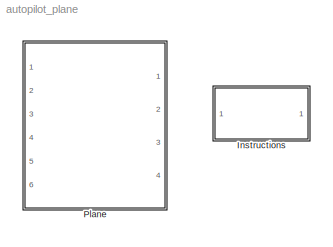
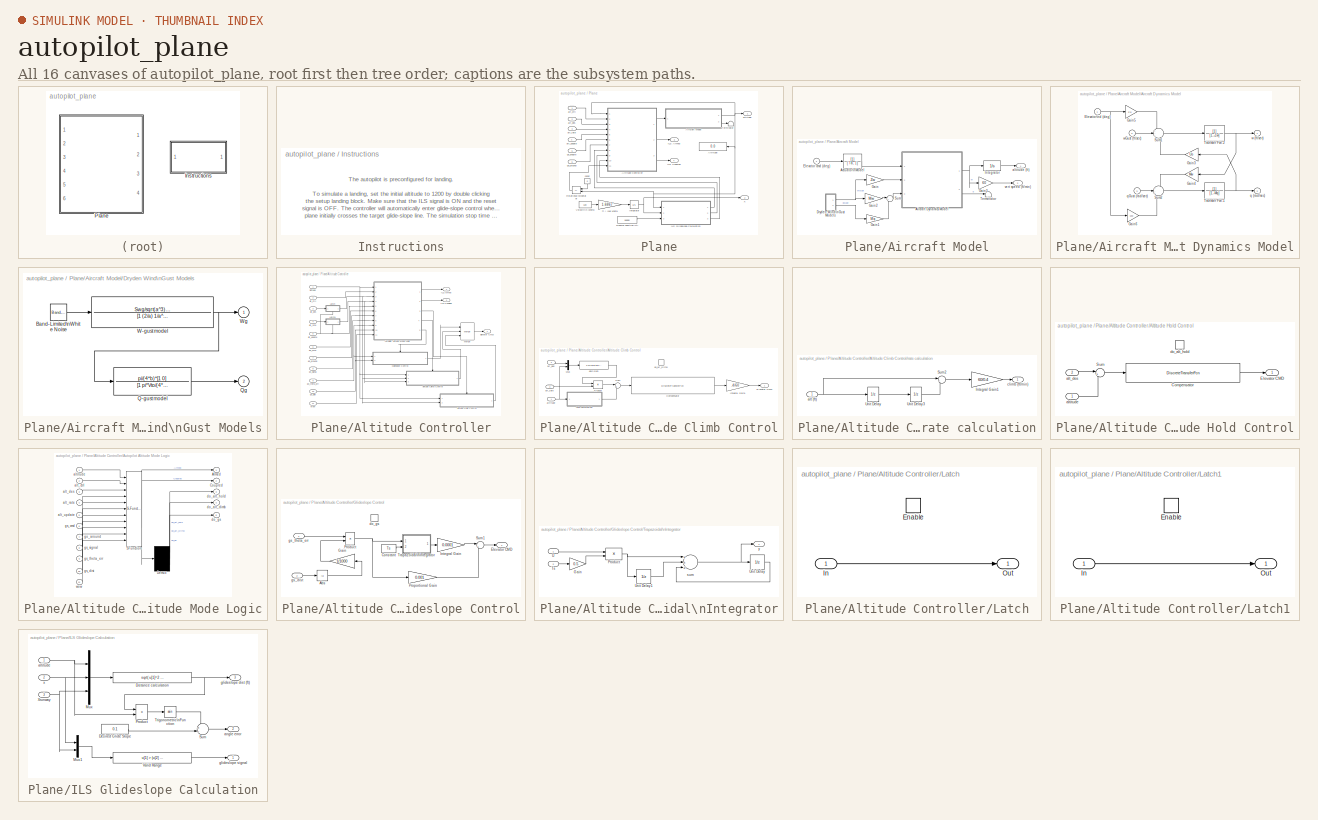
[diagram: thumbnail index - all 16 canvases of the model, root first then tree order]
MODEL autopilot_plane
KIND library
BLOCK [SubSystem] Instructions
  MaskDisplay = disp('Flight\\nInstructions\\n(double-click)')
  MaskIconFrame = on
  MaskIconOpaque = on
  MaskIconRotate = none
  MaskIconUnits = autoscale
  MinAlgLoopOccurrences = off
  Ports = []
  PropExecContextAcrossSSBoundary = on
  RTWSystemCode = Auto
  TreatAsAtomicUnit = off
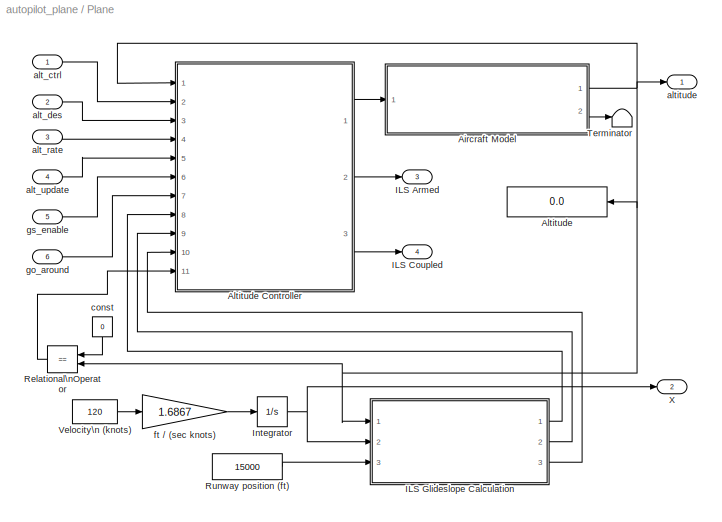
BLOCK [SubSystem] Plane
  MinAlgLoopOccurrences = off
  Ports = [6, 4]
  PropExecContextAcrossSSBoundary = on
  RTWSystemCode = Auto
  TreatAsAtomicUnit = off
BLOCK [SubSystem] Plane/Aircraft Model
  MinAlgLoopOccurrences = off
  Ports = [1, 2]
  PropExecContextAcrossSSBoundary = on
  RTWSystemCode = Auto
  TreatAsAtomicUnit = off
BLOCK [TransferFcn] Plane/Aircraft Model/Actuator\nModel
  Denominator = [ Ta, 1]
BLOCK [SubSystem] Plane/Aircraft Model/Aircraft Dynamics Model
  MinAlgLoopOccurrences = off
  Ports = [3, 2]
  PropExecContextAcrossSSBoundary = on
  RTWSystemCode = Auto
  TreatAsAtomicUnit = off
BLOCK [Inport] Plane/Aircraft Model/Aircraft Dynamics Model/Elevator\nd (deg)
  IconDisplay = Port number
  LatchInput = off
  Port = 1
BLOCK [Gain] Plane/Aircraft Model/Aircraft Dynamics Model/Gain3
  Gain = Uo
BLOCK [Gain] Plane/Aircraft Model/Aircraft Dynamics Model/Gain4
  Gain = Mw
BLOCK [Gain] Plane/Aircraft Model/Aircraft Dynamics Model/Gain5
  Gain = Zd
BLOCK [Gain] Plane/Aircraft Model/Aircraft Dynamics Model/Gain6
  Gain = Md
BLOCK [Sum] Plane/Aircraft Model/Aircraft Dynamics Model/Sum1
  IconShape = round
  Inputs = +-+
  Ports = [3, 1]
BLOCK [Sum] Plane/Aircraft Model/Aircraft Dynamics Model/Sum2
  IconShape = round
  Inputs = +-+
  Ports = [3, 1]
BLOCK [TransferFcn] Plane/Aircraft Model/Aircraft Dynamics Model/Transfer Fcn.1
  Denominator = [1,-Mq]
BLOCK [TransferFcn] Plane/Aircraft Model/Aircraft Dynamics Model/Transfer Fcn.2
  Denominator = [1,-Zw]
BLOCK [Outport] Plane/Aircraft Model/Aircraft Dynamics Model/q (rad//sec)
  IconDisplay = Port number
  InitialOutput = 0
  Port = 2
BLOCK [Inport] Plane/Aircraft Model/Aircraft Dynamics Model/qGust (rad//sec)
  IconDisplay = Port number
  LatchInput = off
  Port = 3
BLOCK [Outport] Plane/Aircraft Model/Aircraft Dynamics Model/w (ft//sec)
  IconDisplay = Port number
  InitialOutput = 0
BLOCK [Inport] Plane/Aircraft Model/Aircraft Dynamics Model/wGust (ft//sec)
  IconDisplay = Port number
  LatchInput = off
  Port = 2
BLOCK [SubSystem] Plane/Aircraft Model/Dryden Wind\nGust Models
  MinAlgLoopOccurrences = off
  Ports = [0, 2]
  PropExecContextAcrossSSBoundary = on
  RTWSystemCode = Auto
  TreatAsAtomicUnit = off
BLOCK [Reference] Plane/Aircraft Model/Dryden Wind\nGust Models/Band-Limited\nWhite Noise  REF=simulink/Sources/Band-Limited\nWhite Noise
  Cov = 1
  Ports = [0, 1]
  SourceBlock = simulink/Sources/Band-Limited\nWhite Noise
  SourceType = Continuous White Noise.
  Ts = 0.2
  VectorParams1D = on
  seed = [23341]
BLOCK [TransferFcn] Plane/Aircraft Model/Dryden Wind\nGust Models/Q-gust model
  Denominator = [1 pi*Vto/(4*b)]
  Numerator = pi/(4*b)*[1 0]
BLOCK [Outport] Plane/Aircraft Model/Dryden Wind\nGust Models/Qg
  IconDisplay = Port number
  InitialOutput = 0
  Port = 2
BLOCK [TransferFcn] Plane/Aircraft Model/Dryden Wind\nGust Models/W-gust model
  Denominator = [1 (2/a) 1/a^2]
  Numerator = Swg/sqrt(a^3)*[sqrt(3)*a,1]
BLOCK [Outport] Plane/Aircraft Model/Dryden Wind\nGust Models/Wg
  IconDisplay = Port number
  InitialOutput = 0
BLOCK [Inport] Plane/Aircraft Model/Elevator cmd (deg)
  IconDisplay = Port number
  LatchInput = off
  Port = 1
BLOCK [Gain] Plane/Aircraft Model/Gain
  Gain = Zw
BLOCK [Gain] Plane/Aircraft Model/Gain1
  Gain = Mq
BLOCK [Gain] Plane/Aircraft Model/Gain2
  Gain = Mw
BLOCK [Gain] Plane/Aircraft Model/Gain3
  Gain = 60
BLOCK [Integrator] Plane/Aircraft Model/Integrator
  InitialCondition = alt_ic
  LimitOutput = on
  LowerSaturationLimit = 0
  Ports = [1, 1]
BLOCK [Sum] Plane/Aircraft Model/Sum
  IconShape = round
  Inputs = |++
  Ports = [2, 1]
BLOCK [Terminator] Plane/Aircraft Model/Terminator
BLOCK [Outport] Plane/Aircraft Model/altitude (ft)
  IconDisplay = Port number
BLOCK [Outport] Plane/Aircraft Model/vert speed (ft//min)
  IconDisplay = Port number
  Port = 2
BLOCK [Display] Plane/Altitude
  Decimation = 1
  Ports = [1]
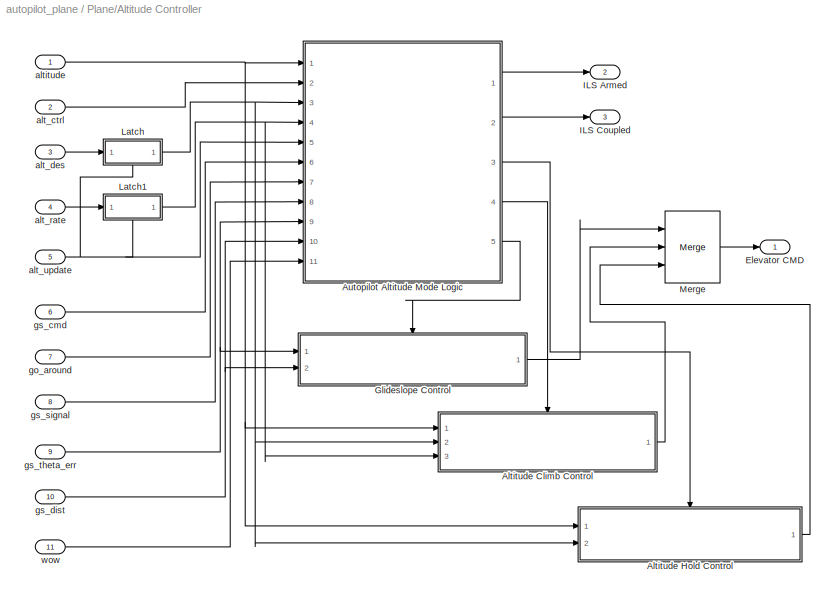
BLOCK [SubSystem] Plane/Altitude Controller
  MinAlgLoopOccurrences = off
  Ports = [11, 3]
  PropExecContextAcrossSSBoundary = on
  RTWSystemCode = Auto
  TreatAsAtomicUnit = off
BLOCK [SubSystem] Plane/Altitude Controller/Altitude Climb Control
  MinAlgLoopOccurrences = off
  Ports = [3, 1, 0, 1]
  PropExecContextAcrossSSBoundary = on
  RTWSystemCode = Auto
  TreatAsAtomicUnit = on
BLOCK [DiscreteTransferFcn] Plane/Altitude Controller/Altitude Climb Control/Compensator
  Denominator = [1 -0.4855  -0.4181 -0.08965  -0.006702]
  Numerator = [-0.003849   0.007402  -0.003561 -2.681e-006]
  SampleTime = -1
BLOCK [Outport] Plane/Altitude Controller/Altitude Climb Control/Elevator CMD
  IconDisplay = Port number
BLOCK [Gain] Plane/Altitude Controller/Altitude Climb Control/Integral Gain1
  Gain = .4/60
BLOCK [Mux] Plane/Altitude Controller/Altitude Climb Control/Mux
  DisplayOption = bar
  Inputs = 2
  Ports = [2, 1]
BLOCK [Product] Plane/Altitude Controller/Altitude Climb Control/Product
  Ports = [2, 1]
  RndMeth = Floor
BLOCK [Sum] Plane/Altitude Controller/Altitude Climb Control/Sum
  IconShape = round
  Inputs = |+-
  Ports = [2, 1]
BLOCK [Inport] Plane/Altitude Controller/Altitude Climb Control/alt_des
  IconDisplay = Port number
  LatchInput = off
  Port = 2
BLOCK [Inport] Plane/Altitude Controller/Altitude Climb Control/alt_rate
  IconDisplay = Port number
  LatchInput = off
  Port = 3
BLOCK [Inport] Plane/Altitude Controller/Altitude Climb Control/altitude
  IconDisplay = Port number
  LatchInput = off
  Port = 1
BLOCK [TriggerPort] Plane/Altitude Controller/Altitude Climb Control/do_alt_climb
  Ports = []
  TriggerType = function-call
BLOCK [Fcn] Plane/Altitude Controller/Altitude Climb Control/gain sign
  Expr = 1-2*(u[2]>u[1])
BLOCK [SubSystem] Plane/Altitude Controller/Altitude Climb Control/rate calculation
  MinAlgLoopOccurrences = off
  Ports = [1, 1]
  PropExecContextAcrossSSBoundary = on
  RTWSystemCode = Auto
  TreatAsAtomicUnit = off
BLOCK [Gain] Plane/Altitude Controller/Altitude Climb Control/rate calculation/Integral Gain1
  Gain = 60/0.4
BLOCK [Sum] Plane/Altitude Controller/Altitude Climb Control/rate calculation/Sum2
  IconShape = round
  Inputs = |+-
  Ports = [2, 1]
BLOCK [UnitDelay] Plane/Altitude Controller/Altitude Climb Control/rate calculation/Unit Delay
  SampleTime = -1
  X0 = 10000
BLOCK [UnitDelay] Plane/Altitude Controller/Altitude Climb Control/rate calculation/Unit Delay3
  SampleTime = -1
  X0 = 10000
BLOCK [Inport] Plane/Altitude Controller/Altitude Climb Control/rate calculation/alt (ft)
  IconDisplay = Port number
  LatchInput = off
  Port = 1
BLOCK [Outport] Plane/Altitude Controller/Altitude Climb Control/rate calculation/climb (ft//min)
  IconDisplay = Port number
BLOCK [SubSystem] Plane/Altitude Controller/Altitude Hold Control
  MinAlgLoopOccurrences = off
  Ports = [2, 1, 0, 1]
  PropExecContextAcrossSSBoundary = on
  RTWSystemCode = Auto
  TreatAsAtomicUnit = on
BLOCK [DiscreteTransferFcn] Plane/Altitude Controller/Altitude Hold Control/Compensator
  Denominator = [1 1.713  0.7383]
  Numerator = [-0.007845  0.01559 -0.007756]
  SampleTime = -1
BLOCK [Outport] Plane/Altitude Controller/Altitude Hold Control/Elevator CMD
  IconDisplay = Port number
BLOCK [Sum] Plane/Altitude Controller/Altitude Hold Control/Sum
  IconShape = round
  Inputs = |+-
  Ports = [2, 1]
BLOCK [Inport] Plane/Altitude Controller/Altitude Hold Control/alt_des
  IconDisplay = Port number
  LatchInput = off
  Port = 2
BLOCK [Inport] Plane/Altitude Controller/Altitude Hold Control/altitude
  IconDisplay = Port number
  LatchInput = off
  Port = 1
BLOCK [TriggerPort] Plane/Altitude Controller/Altitude Hold Control/do_alt_hold
  Ports = []
  TriggerType = function-call
BLOCK [SubSystem] Plane/Altitude Controller/Autopilot Altitude Mode Logic
  MaskDisplay = plot(sf('Private','sfblk','xIcon'),sf('Private','sfblk','yIcon'));text(0.5,0,sf('Private', 'sfblk', 'tIcon'),'HorizontalAl','Center','VerticalAl','Bottom');
  MaskIconFrame = off
  MaskIconOpaque = off
  MaskIconRotate = none
  MaskIconUnits = autoscale
  MaskSelfModifiable = on
  MaskType = Stateflow
  MinAlgLoopOccurrences = off
  Ports = [11, 5]
  PropExecContextAcrossSSBoundary = on
  RTWSystemCode = Auto
  TreatAsAtomicUnit = off
BLOCK [Demux] Plane/Altitude Controller/Autopilot Altitude Mode Logic/ Demux 
  Outputs = 3
  Ports = [1, 3]
BLOCK [S-Function] Plane/Altitude Controller/Autopilot Altitude Mode Logic/ SFunction 
  FunctionName = sf_sfun
  Parameters = Ts
  PortCounts = [11 3]
  Ports = [11, 3]
  Tag = Stateflow S-Function autopilot_plane 1
BLOCK [Outport] Plane/Altitude Controller/Autopilot Altitude Mode Logic/Armed
  IconDisplay = Port number
BLOCK [Outport] Plane/Altitude Controller/Autopilot Altitude Mode Logic/Coupled
  IconDisplay = Port number
  Port = 2
BLOCK [Inport] Plane/Altitude Controller/Autopilot Altitude Mode Logic/alt_ctrl
  IconDisplay = Port number
  LatchInput = off
  Port = 2
BLOCK [Inport] Plane/Altitude Controller/Autopilot Altitude Mode Logic/alt_des
  IconDisplay = Port number
  LatchInput = off
  Port = 3
BLOCK [Inport] Plane/Altitude Controller/Autopilot Altitude Mode Logic/alt_rate
  IconDisplay = Port number
  LatchInput = off
  Port = 4
BLOCK [Inport] Plane/Altitude Controller/Autopilot Altitude Mode Logic/alt_update
  IconDisplay = Port number
  LatchInput = off
  Port = 5
BLOCK [Inport] Plane/Altitude Controller/Autopilot Altitude Mode Logic/altitude
  IconDisplay = Port number
  LatchInput = off
  Port = 1
BLOCK [Outport] Plane/Altitude Controller/Autopilot Altitude Mode Logic/do_alt_climb
  IconDisplay = Port number
  Port = 4
BLOCK [Outport] Plane/Altitude Controller/Autopilot Altitude Mode Logic/do_alt_hold
  IconDisplay = Port number
  Port = 3
BLOCK [Outport] Plane/Altitude Controller/Autopilot Altitude Mode Logic/do_gs
  IconDisplay = Port number
  Port = 5
BLOCK [Inport] Plane/Altitude Controller/Autopilot Altitude Mode Logic/go_around
  IconDisplay = Port number
  LatchInput = off
  Port = 7
BLOCK [Inport] Plane/Altitude Controller/Autopilot Altitude Mode Logic/gs_cmd
  IconDisplay = Port number
  LatchInput = off
  Port = 6
BLOCK [Inport] Plane/Altitude Controller/Autopilot Altitude Mode Logic/gs_dist
  IconDisplay = Port number
  LatchInput = off
  Port = 10
BLOCK [Inport] Plane/Altitude Controller/Autopilot Altitude Mode Logic/gs_signal
  IconDisplay = Port number
  LatchInput = off
  Port = 8
BLOCK [Inport] Plane/Altitude Controller/Autopilot Altitude Mode Logic/gs_theta_err
  IconDisplay = Port number
  LatchInput = off
  Port = 9
BLOCK [Inport] Plane/Altitude Controller/Autopilot Altitude Mode Logic/wow
  IconDisplay = Port number
  LatchInput = off
  Port = 11
BLOCK [Outport] Plane/Altitude Controller/Elevator CMD
  IconDisplay = Port number
BLOCK [SubSystem] Plane/Altitude Controller/Glideslope Control
  MinAlgLoopOccurrences = off
  Ports = [2, 1, 0, 1]
  PropExecContextAcrossSSBoundary = on
  RTWSystemCode = Auto
  TreatAsAtomicUnit = on
BLOCK [Abs] Plane/Altitude Controller/Glideslope Control/Abs
BLOCK [Constant] Plane/Altitude Controller/Glideslope Control/Constant
  Value = Ts
BLOCK [Outport] Plane/Altitude Controller/Glideslope Control/Elevator CMD
  IconDisplay = Port number
BLOCK [Gain] Plane/Altitude Controller/Glideslope Control/Gain
  Gain = 1/1000
BLOCK [Gain] Plane/Altitude Controller/Glideslope Control/Integral Gain
  Gain = 0.0001
BLOCK [Product] Plane/Altitude Controller/Glideslope Control/Product
  Ports = [2, 1]
  RndMeth = Floor
BLOCK [Gain] Plane/Altitude Controller/Glideslope Control/Proportional Gain
  Gain = 0.001
BLOCK [Sum] Plane/Altitude Controller/Glideslope Control/Sum1
  IconShape = round
  Inputs = |++
  Ports = [2, 1]
BLOCK [SubSystem] Plane/Altitude Controller/Glideslope Control/Trapazoidal\nIntegrator
  MaskDescription = Discrete-time integrator with no dependence on absolute time.  U is the input value and Ts is the discrete sample time.
  MaskDisplay = disp(sprintf('T(z+1)\\n-----\\n2(z-1)'))\nport_label('input',1,'U');\nport_label('input',2,'Ts');
  MaskIconFrame = on
  MaskIconOpaque = on
  MaskIconRotate = none
  MaskIconUnits = autoscale
  MaskType = No Time Trapazoid Integrator
  MinAlgLoopOccurrences = off
  Ports = [2, 1]
  PropExecContextAcrossSSBoundary = on
  RTWSystemCode = Auto
  TreatAsAtomicUnit = off
BLOCK [Gain] Plane/Altitude Controller/Glideslope Control/Trapazoidal\nIntegrator/Gain
  Gain = 0.5
  SaturateOnIntegerOverflow = off
BLOCK [Product] Plane/Altitude Controller/Glideslope Control/Trapazoidal\nIntegrator/Product
  Ports = [2, 1]
  RndMeth = Floor
  SaturateOnIntegerOverflow = off
BLOCK [Inport] Plane/Altitude Controller/Glideslope Control/Trapazoidal\nIntegrator/Ts
  IconDisplay = Port number
  LatchInput = off
  Port = 2
BLOCK [Inport] Plane/Altitude Controller/Glideslope Control/Trapazoidal\nIntegrator/U
  IconDisplay = Port number
  LatchInput = off
  Port = 1
BLOCK [UnitDelay] Plane/Altitude Controller/Glideslope Control/Trapazoidal\nIntegrator/Unit Delay
  SampleTime = -1
BLOCK [UnitDelay] Plane/Altitude Controller/Glideslope Control/Trapazoidal\nIntegrator/Unit Delay1
  SampleTime = -1
BLOCK [Sum] Plane/Altitude Controller/Glideslope Control/Trapazoidal\nIntegrator/sum
  Inputs = +++
  Ports = [3, 1]
  SaturateOnIntegerOverflow = off
BLOCK [Outport] Plane/Altitude Controller/Glideslope Control/Trapazoidal\nIntegrator/y
  IconDisplay = Port number
BLOCK [TriggerPort] Plane/Altitude Controller/Glideslope Control/do_gs
  Ports = []
  TriggerType = function-call
BLOCK [Inport] Plane/Altitude Controller/Glideslope Control/gs_dist
  IconDisplay = Port number
  LatchInput = off
  Port = 2
BLOCK [Inport] Plane/Altitude Controller/Glideslope Control/gs_theta_err
  IconDisplay = Port number
  LatchInput = off
  Port = 1
BLOCK [Outport] Plane/Altitude Controller/ILS Armed
  IconDisplay = Port number
  Port = 2
BLOCK [Outport] Plane/Altitude Controller/ILS Coupled
  IconDisplay = Port number
  Port = 3
BLOCK [SubSystem] Plane/Altitude Controller/Latch
  MinAlgLoopOccurrences = off
  Ports = [1, 1, 1]
  PropExecContextAcrossSSBoundary = on
  RTWSystemCode = Inline
  TreatAsAtomicUnit = on
BLOCK [EnablePort] Plane/Altitude Controller/Latch/Enable
  Ports = []
BLOCK [Inport] Plane/Altitude Controller/Latch/In
  IconDisplay = Port number
  LatchInput = off
  Port = 1
BLOCK [Outport] Plane/Altitude Controller/Latch/Out
  IconDisplay = Port number
  InitialOutput = alt_ic
BLOCK [SubSystem] Plane/Altitude Controller/Latch1
  MinAlgLoopOccurrences = off
  Ports = [1, 1, 1]
  PropExecContextAcrossSSBoundary = on
  RTWSystemCode = Inline
  TreatAsAtomicUnit = on
BLOCK [EnablePort] Plane/Altitude Controller/Latch1/Enable
  Ports = []
BLOCK [Inport] Plane/Altitude Controller/Latch1/In
  IconDisplay = Port number
  LatchInput = off
  Port = 1
BLOCK [Outport] Plane/Altitude Controller/Latch1/Out
  IconDisplay = Port number
  InitialOutput = 10000
BLOCK [Merge] Plane/Altitude Controller/Merge
  Inputs = 3
  Ports = [3, 1]
BLOCK [Inport] Plane/Altitude Controller/alt_ctrl
  IconDisplay = Port number
  LatchInput = off
  Port = 2
  SampleTime = Ts
BLOCK [Inport] Plane/Altitude Controller/alt_des
  IconDisplay = Port number
  LatchInput = off
  Port = 3
  SampleTime = Ts
BLOCK [Inport] Plane/Altitude Controller/alt_rate
  IconDisplay = Port number
  LatchInput = off
  Port = 4
  SampleTime = Ts
BLOCK [Inport] Plane/Altitude Controller/alt_update
  IconDisplay = Port number
  LatchInput = off
  Port = 5
  SampleTime = Ts
BLOCK [Inport] Plane/Altitude Controller/altitude
  IconDisplay = Port number
  LatchInput = off
  Port = 1
  SampleTime = Ts
BLOCK [Inport] Plane/Altitude Controller/go_around
  IconDisplay = Port number
  LatchInput = off
  Port = 7
  SampleTime = Ts
BLOCK [Inport] Plane/Altitude Controller/gs_cmd
  IconDisplay = Port number
  LatchInput = off
  Port = 6
  SampleTime = Ts
BLOCK [Inport] Plane/Altitude Controller/gs_dist
  IconDisplay = Port number
  LatchInput = off
  Port = 10
  SampleTime = Ts
BLOCK [Inport] Plane/Altitude Controller/gs_signal
  IconDisplay = Port number
  LatchInput = off
  Port = 8
  SampleTime = Ts
BLOCK [Inport] Plane/Altitude Controller/gs_theta_err
  IconDisplay = Port number
  LatchInput = off
  Port = 9
  SampleTime = Ts
BLOCK [Inport] Plane/Altitude Controller/wow
  IconDisplay = Port number
  LatchInput = off
  Port = 11
  SampleTime = Ts
BLOCK [Outport] Plane/ILS Armed
  IconDisplay = Port number
  Port = 3
BLOCK [Outport] Plane/ILS Coupled
  IconDisplay = Port number
  Port = 4
BLOCK [SubSystem] Plane/ILS Glideslope Calculation
  MinAlgLoopOccurrences = off
  Ports = [3, 3]
  PropExecContextAcrossSSBoundary = on
  RTWSystemCode = Auto
  TreatAsAtomicUnit = off
BLOCK [Constant] Plane/ILS Glideslope Calculation/Desired Glide Slope
  Value = 0.1
BLOCK [Fcn] Plane/ILS Glideslope Calculation/Distance calculation
  Expr = sqrt( u[1]^2 + (u[2] - u[3])^2 )
BLOCK [Mux] Plane/ILS Glideslope Calculation/Mux
  DisplayOption = bar
  Inputs = 3
  Ports = [3, 1]
BLOCK [Mux] Plane/ILS Glideslope Calculation/Mux1
  DisplayOption = bar
  Inputs = 2
  Ports = [2, 1]
BLOCK [Product] Plane/ILS Glideslope Calculation/Product
  Inputs = /*
  Ports = [2, 1]
  RndMeth = Floor
BLOCK [Sum] Plane/ILS Glideslope Calculation/Sum
  IconShape = round
  Inputs = +-|
  Ports = [2, 1]
BLOCK [Trigonometry] Plane/ILS Glideslope Calculation/Trigonometric\nFunction
  Operator = asin
  Ports = [1, 1]
BLOCK [Fcn] Plane/ILS Glideslope Calculation/Valid Range
  Expr = u[1] > (u[2] - 10000)
BLOCK [Inport] Plane/ILS Glideslope Calculation/Xrunway
  IconDisplay = Port number
  LatchInput = off
  Port = 3
BLOCK [Inport] Plane/ILS Glideslope Calculation/altitude
  IconDisplay = Port number
  LatchInput = off
  Port = 1
BLOCK [Outport] Plane/ILS Glideslope Calculation/angle error
  IconDisplay = Port number
  Port = 2
BLOCK [Outport] Plane/ILS Glideslope Calculation/glideslope dist (ft)
  IconDisplay = Port number
  Port = 3
BLOCK [Outport] Plane/ILS Glideslope Calculation/glideslope signal
  IconDisplay = Port number
BLOCK [Inport] Plane/ILS Glideslope Calculation/x
  IconDisplay = Port number
  LatchInput = off
  Port = 2
BLOCK [Integrator] Plane/Integrator
  Ports = [1, 1]
BLOCK [RelationalOperator] Plane/Relational\nOperator
  Operator = ==
BLOCK [Constant] Plane/Runway position (ft)
  Value = 15000
BLOCK [Terminator] Plane/Terminator
BLOCK [Constant] Plane/Velocity\n (knots)
  Value = 120
BLOCK [Outport] Plane/X
  IconDisplay = Port number
  Port = 2
BLOCK [Inport] Plane/alt_ctrl
  IconDisplay = Port number
  LatchInput = off
  Port = 1
BLOCK [Inport] Plane/alt_des
  IconDisplay = Port number
  LatchInput = off
  Port = 2
BLOCK [Inport] Plane/alt_rate
  IconDisplay = Port number
  LatchInput = off
  Port = 3
BLOCK [Inport] Plane/alt_update
  IconDisplay = Port number
  LatchInput = off
  Port = 4
BLOCK [Outport] Plane/altitude
  IconDisplay = Port number
BLOCK [Constant] Plane/const
  Value = 0
BLOCK [Gain] Plane/ft // (sec knots)
  Gain = 1.6867
BLOCK [Inport] Plane/go_around
  IconDisplay = Port number
  LatchInput = off
  Port = 6
BLOCK [Inport] Plane/gs_enable
  IconDisplay = Port number
  LatchInput = off
  Port = 5
ANNOTATION Instructions: The autopilot is preconfigured for landing.\n\nTo simulate a landing, set the initial altitude to 1200 by double clicking\nthe setup landing block. Make sure that the ILS signal is ON and the reset\nsignal is OFF. The controller will automatically enter glide-slope control when the\nplane initially crosses the target glide-slope line. The simulation stop time is set\nto 150 seconds. \n\nTo simulat...<+366ch>
LINE Plane/Aircraft Model/Actuator\nModel:1 -> Plane/Aircraft Model/Aircraft Dynamics Model:1
NET Plane/Aircraft Model/Aircraft Dynamics Model/Elevator\nd (deg):1 -> Plane/Aircraft Model/Aircraft Dynamics Model/Gain5:1, Plane/Aircraft Model/Aircraft Dynamics Model/Gain6:1
LINE Plane/Aircraft Model/Aircraft Dynamics Model/Gain3:1 -> Plane/Aircraft Model/Aircraft Dynamics Model/Sum1:3
LINE Plane/Aircraft Model/Aircraft Dynamics Model/Gain4:1 -> Plane/Aircraft Model/Aircraft Dynamics Model/Sum2:1
LINE Plane/Aircraft Model/Aircraft Dynamics Model/Gain5:1 -> Plane/Aircraft Model/Aircraft Dynamics Model/Sum1:1
LINE Plane/Aircraft Model/Aircraft Dynamics Model/Gain6:1 -> Plane/Aircraft Model/Aircraft Dynamics Model/Sum2:3
LINE Plane/Aircraft Model/Aircraft Dynamics Model/Sum1:1 -> Plane/Aircraft Model/Aircraft Dynamics Model/Transfer Fcn.2:1
LINE Plane/Aircraft Model/Aircraft Dynamics Model/Sum2:1 -> Plane/Aircraft Model/Aircraft Dynamics Model/Transfer Fcn.1:1
NET Plane/Aircraft Model/Aircraft Dynamics Model/Transfer Fcn.1:1 -> Plane/Aircraft Model/Aircraft Dynamics Model/Gain3:1, Plane/Aircraft Model/Aircraft Dynamics Model/q (rad//sec):1
NET Plane/Aircraft Model/Aircraft Dynamics Model/Transfer Fcn.2:1 -> Plane/Aircraft Model/Aircraft Dynamics Model/Gain4:1, Plane/Aircraft Model/Aircraft Dynamics Model/w (ft//sec):1
LINE Plane/Aircraft Model/Aircraft Dynamics Model/qGust (rad//sec):1 -> Plane/Aircraft Model/Aircraft Dynamics Model/Sum2:2
LINE Plane/Aircraft Model/Aircraft Dynamics Model/wGust (ft//sec):1 -> Plane/Aircraft Model/Aircraft Dynamics Model/Sum1:2
NET Plane/Aircraft Model/Aircraft Dynamics Model:1 -> Plane/Aircraft Model/Gain3:1, Plane/Aircraft Model/Integrator:1
LINE Plane/Aircraft Model/Aircraft Dynamics Model:2 -> Plane/Aircraft Model/Terminator:1
LINE Plane/Aircraft Model/Dryden Wind\nGust Models/Band-Limited\nWhite Noise:1 -> Plane/Aircraft Model/Dryden Wind\nGust Models/W-gust model:1
LINE Plane/Aircraft Model/Dryden Wind\nGust Models/Q-gust model:1 -> Plane/Aircraft Model/Dryden Wind\nGust Models/Qg:1
NET Plane/Aircraft Model/Dryden Wind\nGust Models/W-gust model:1 -> Plane/Aircraft Model/Dryden Wind\nGust Models/Q-gust model:1, Plane/Aircraft Model/Dryden Wind\nGust Models/Wg:1
NET Plane/Aircraft Model/Dryden Wind\nGust Models:1 -> Plane/Aircraft Model/Gain2:1, Plane/Aircraft Model/Gain:1
LINE Plane/Aircraft Model/Dryden Wind\nGust Models:2 -> Plane/Aircraft Model/Gain1:1
LINE Plane/Aircraft Model/Elevator cmd (deg):1 -> Plane/Aircraft Model/Actuator\nModel:1
LINE Plane/Aircraft Model/Gain1:1 -> Plane/Aircraft Model/Sum:2
LINE Plane/Aircraft Model/Gain2:1 -> Plane/Aircraft Model/Sum:1
LINE Plane/Aircraft Model/Gain3:1 -> Plane/Aircraft Model/vert speed (ft//min):1
LINE Plane/Aircraft Model/Gain:1 -> Plane/Aircraft Model/Aircraft Dynamics Model:2
LINE Plane/Aircraft Model/Integrator:1 -> Plane/Aircraft Model/altitude (ft):1
LINE Plane/Aircraft Model/Sum:1 -> Plane/Aircraft Model/Aircraft Dynamics Model:3
NET Plane/Aircraft Model:1 -> Plane/Altitude Controller:1, Plane/Altitude:1, Plane/ILS Glideslope Calculation:1, Plane/Relational\nOperator:2, Plane/altitude:1
LINE Plane/Aircraft Model:2 -> Plane/Terminator:1
LINE Plane/Altitude Controller/Altitude Climb Control/Compensator:1 -> Plane/Altitude Controller/Altitude Climb Control/Integral Gain1:1
LINE Plane/Altitude Controller/Altitude Climb Control/Integral Gain1:1 -> Plane/Altitude Controller/Altitude Climb Control/Elevator CMD:1
LINE Plane/Altitude Controller/Altitude Climb Control/Mux:1 -> Plane/Altitude Controller/Altitude Climb Control/gain sign:1
LINE Plane/Altitude Controller/Altitude Climb Control/Product:1 -> Plane/Altitude Controller/Altitude Climb Control/Sum:1
LINE Plane/Altitude Controller/Altitude Climb Control/Sum:1 -> Plane/Altitude Controller/Altitude Climb Control/Compensator:1
LINE Plane/Altitude Controller/Altitude Climb Control/alt_des:1 -> Plane/Altitude Controller/Altitude Climb Control/Mux:1
LINE Plane/Altitude Controller/Altitude Climb Control/alt_rate:1 -> Plane/Altitude Controller/Altitude Climb Control/Product:2
NET Plane/Altitude Controller/Altitude Climb Control/altitude:1 -> Plane/Altitude Controller/Altitude Climb Control/Mux:2, Plane/Altitude Controller/Altitude Climb Control/rate calculation:1
LINE Plane/Altitude Controller/Altitude Climb Control/gain sign:1 -> Plane/Altitude Controller/Altitude Climb Control/Product:1
LINE Plane/Altitude Controller/Altitude Climb Control/rate calculation/Integral Gain1:1 -> Plane/Altitude Controller/Altitude Climb Control/rate calculation/climb (ft//min):1
LINE Plane/Altitude Controller/Altitude Climb Control/rate calculation/Sum2:1 -> Plane/Altitude Controller/Altitude Climb Control/rate calculation/Integral Gain1:1
LINE Plane/Altitude Controller/Altitude Climb Control/rate calculation/Unit Delay3:1 -> Plane/Altitude Controller/Altitude Climb Control/rate calculation/Sum2:2
LINE Plane/Altitude Controller/Altitude Climb Control/rate calculation/Unit Delay:1 -> Plane/Altitude Controller/Altitude Climb Control/rate calculation/Unit Delay3:1
NET Plane/Altitude Controller/Altitude Climb Control/rate calculation/alt (ft):1 -> Plane/Altitude Controller/Altitude Climb Control/rate calculation/Sum2:1, Plane/Altitude Controller/Altitude Climb Control/rate calculation/Unit Delay:1
LINE Plane/Altitude Controller/Altitude Climb Control/rate calculation:1 -> Plane/Altitude Controller/Altitude Climb Control/Sum:2
LINE Plane/Altitude Controller/Altitude Climb Control:1 -> Plane/Altitude Controller/Merge:2
LINE Plane/Altitude Controller/Altitude Hold Control/Compensator:1 -> Plane/Altitude Controller/Altitude Hold Control/Elevator CMD:1
LINE Plane/Altitude Controller/Altitude Hold Control/Sum:1 -> Plane/Altitude Controller/Altitude Hold Control/Compensator:1
LINE Plane/Altitude Controller/Altitude Hold Control/alt_des:1 -> Plane/Altitude Controller/Altitude Hold Control/Sum:1
LINE Plane/Altitude Controller/Altitude Hold Control/altitude:1 -> Plane/Altitude Controller/Altitude Hold Control/Sum:2
LINE Plane/Altitude Controller/Altitude Hold Control:1 -> Plane/Altitude Controller/Merge:3
LINE Plane/Altitude Controller/Autopilot Altitude Mode Logic/ Demux :1 -> Plane/Altitude Controller/Autopilot Altitude Mode Logic/do_alt_hold:1
LINE Plane/Altitude Controller/Autopilot Altitude Mode Logic/ Demux :2 -> Plane/Altitude Controller/Autopilot Altitude Mode Logic/do_alt_climb:1
LINE Plane/Altitude Controller/Autopilot Altitude Mode Logic/ Demux :3 -> Plane/Altitude Controller/Autopilot Altitude Mode Logic/do_gs:1
LINE Plane/Altitude Controller/Autopilot Altitude Mode Logic/ SFunction :1 -> Plane/Altitude Controller/Autopilot Altitude Mode Logic/ Demux :1
LINE Plane/Altitude Controller/Autopilot Altitude Mode Logic/ SFunction :2 -> Plane/Altitude Controller/Autopilot Altitude Mode Logic/Armed:1
LINE Plane/Altitude Controller/Autopilot Altitude Mode Logic/ SFunction :3 -> Plane/Altitude Controller/Autopilot Altitude Mode Logic/Coupled:1
LINE Plane/Altitude Controller/Autopilot Altitude Mode Logic/alt_ctrl:1 -> Plane/Altitude Controller/Autopilot Altitude Mode Logic/ SFunction :2
LINE Plane/Altitude Controller/Autopilot Altitude Mode Logic/alt_des:1 -> Plane/Altitude Controller/Autopilot Altitude Mode Logic/ SFunction :3
LINE Plane/Altitude Controller/Autopilot Altitude Mode Logic/alt_rate:1 -> Plane/Altitude Controller/Autopilot Altitude Mode Logic/ SFunction :4
LINE Plane/Altitude Controller/Autopilot Altitude Mode Logic/alt_update:1 -> Plane/Altitude Controller/Autopilot Altitude Mode Logic/ SFunction :5
LINE Plane/Altitude Controller/Autopilot Altitude Mode Logic/altitude:1 -> Plane/Altitude Controller/Autopilot Altitude Mode Logic/ SFunction :1
LINE Plane/Altitude Controller/Autopilot Altitude Mode Logic/go_around:1 -> Plane/Altitude Controller/Autopilot Altitude Mode Logic/ SFunction :7
LINE Plane/Altitude Controller/Autopilot Altitude Mode Logic/gs_cmd:1 -> Plane/Altitude Controller/Autopilot Altitude Mode Logic/ SFunction :6
LINE Plane/Altitude Controller/Autopilot Altitude Mode Logic/gs_dist:1 -> Plane/Altitude Controller/Autopilot Altitude Mode Logic/ SFunction :10
LINE Plane/Altitude Controller/Autopilot Altitude Mode Logic/gs_signal:1 -> Plane/Altitude Controller/Autopilot Altitude Mode Logic/ SFunction :8
LINE Plane/Altitude Controller/Autopilot Altitude Mode Logic/gs_theta_err:1 -> Plane/Altitude Controller/Autopilot Altitude Mode Logic/ SFunction :9
LINE Plane/Altitude Controller/Autopilot Altitude Mode Logic/wow:1 -> Plane/Altitude Controller/Autopilot Altitude Mode Logic/ SFunction :11
LINE Plane/Altitude Controller/Autopilot Altitude Mode Logic:1 -> Plane/Altitude Controller/ILS Armed:1
LINE Plane/Altitude Controller/Autopilot Altitude Mode Logic:2 -> Plane/Altitude Controller/ILS Coupled:1
LINE Plane/Altitude Controller/Autopilot Altitude Mode Logic:3 -> Plane/Altitude Controller/Altitude Hold Control:trigger
LINE Plane/Altitude Controller/Autopilot Altitude Mode Logic:4 -> Plane/Altitude Controller/Altitude Climb Control:trigger
LINE Plane/Altitude Controller/Autopilot Altitude Mode Logic:5 -> Plane/Altitude Controller/Glideslope Control:trigger
LINE Plane/Altitude Controller/Glideslope Control/Abs:1 -> Plane/Altitude Controller/Glideslope Control/Gain:1
LINE Plane/Altitude Controller/Glideslope Control/Constant:1 -> Plane/Altitude Controller/Glideslope Control/Trapazoidal\nIntegrator:2
LINE Plane/Altitude Controller/Glideslope Control/Gain:1 -> Plane/Altitude Controller/Glideslope Control/Product:2
LINE Plane/Altitude Controller/Glideslope Control/Integral Gain:1 -> Plane/Altitude Controller/Glideslope Control/Sum1:1
NET Plane/Altitude Controller/Glideslope Control/Product:1 -> Plane/Altitude Controller/Glideslope Control/Proportional Gain:1, Plane/Altitude Controller/Glideslope Control/Trapazoidal\nIntegrator:1
LINE Plane/Altitude Controller/Glideslope Control/Proportional Gain:1 -> Plane/Altitude Controller/Glideslope Control/Sum1:2
LINE Plane/Altitude Controller/Glideslope Control/Sum1:1 -> Plane/Altitude Controller/Glideslope Control/Elevator CMD:1
LINE Plane/Altitude Controller/Glideslope Control/Trapazoidal\nIntegrator/Gain:1 -> Plane/Altitude Controller/Glideslope Control/Trapazoidal\nIntegrator/Product:2
NET Plane/Altitude Controller/Glideslope Control/Trapazoidal\nIntegrator/Product:1 -> Plane/Altitude Controller/Glideslope Control/Trapazoidal\nIntegrator/Unit Delay1:1, Plane/Altitude Controller/Glideslope Control/Trapazoidal\nIntegrator/sum:1
LINE Plane/Altitude Controller/Glideslope Control/Trapazoidal\nIntegrator/Ts:1 -> Plane/Altitude Controller/Glideslope Control/Trapazoidal\nIntegrator/Gain:1
LINE Plane/Altitude Controller/Glideslope Control/Trapazoidal\nIntegrator/U:1 -> Plane/Altitude Controller/Glideslope Control/Trapazoidal\nIntegrator/Product:1
LINE Plane/Altitude Controller/Glideslope Control/Trapazoidal\nIntegrator/Unit Delay1:1 -> Plane/Altitude Controller/Glideslope Control/Trapazoidal\nIntegrator/sum:2
LINE Plane/Altitude Controller/Glideslope Control/Trapazoidal\nIntegrator/Unit Delay:1 -> Plane/Altitude Controller/Glideslope Control/Trapazoidal\nIntegrator/sum:3
NET Plane/Altitude Controller/Glideslope Control/Trapazoidal\nIntegrator/sum:1 -> Plane/Altitude Controller/Glideslope Control/Trapazoidal\nIntegrator/Unit Delay:1, Plane/Altitude Controller/Glideslope Control/Trapazoidal\nIntegrator/y:1
LINE Plane/Altitude Controller/Glideslope Control/Trapazoidal\nIntegrator:1 -> Plane/Altitude Controller/Glideslope Control/Integral Gain:1
LINE Plane/Altitude Controller/Glideslope Control/gs_dist:1 -> Plane/Altitude Controller/Glideslope Control/Abs:1
LINE Plane/Altitude Controller/Glideslope Control/gs_theta_err:1 -> Plane/Altitude Controller/Glideslope Control/Product:1
LINE Plane/Altitude Controller/Glideslope Control:1 -> Plane/Altitude Controller/Merge:1
LINE Plane/Altitude Controller/Latch/In:1 -> Plane/Altitude Controller/Latch/Out:1
LINE Plane/Altitude Controller/Latch1/In:1 -> Plane/Altitude Controller/Latch1/Out:1
NET Plane/Altitude Controller/Latch1:1 -> Plane/Altitude Controller/Altitude Climb Control:3, Plane/Altitude Controller/Autopilot Altitude Mode Logic:4
NET Plane/Altitude Controller/Latch:1 -> Plane/Altitude Controller/Altitude Climb Control:2, Plane/Altitude Controller/Altitude Hold Control:2, Plane/Altitude Controller/Autopilot Altitude Mode Logic:3
LINE Plane/Altitude Controller/Merge:1 -> Plane/Altitude Controller/Elevator CMD:1
LINE Plane/Altitude Controller/alt_ctrl:1 -> Plane/Altitude Controller/Autopilot Altitude Mode Logic:2
LINE Plane/Altitude Controller/alt_des:1 -> Plane/Altitude Controller/Latch:1
LINE Plane/Altitude Controller/alt_rate:1 -> Plane/Altitude Controller/Latch1:1
NET Plane/Altitude Controller/alt_update:1 -> Plane/Altitude Controller/Autopilot Altitude Mode Logic:5, Plane/Altitude Controller/Latch1:enable, Plane/Altitude Controller/Latch:enable
NET Plane/Altitude Controller/altitude:1 -> Plane/Altitude Controller/Altitude Climb Control:1, Plane/Altitude Controller/Altitude Hold Control:1, Plane/Altitude Controller/Autopilot Altitude Mode Logic:1
LINE Plane/Altitude Controller/go_around:1 -> Plane/Altitude Controller/Autopilot Altitude Mode Logic:7
LINE Plane/Altitude Controller/gs_cmd:1 -> Plane/Altitude Controller/Autopilot Altitude Mode Logic:6
NET Plane/Altitude Controller/gs_dist:1 -> Plane/Altitude Controller/Autopilot Altitude Mode Logic:10, Plane/Altitude Controller/Glideslope Control:2
LINE Plane/Altitude Controller/gs_signal:1 -> Plane/Altitude Controller/Autopilot Altitude Mode Logic:8
NET Plane/Altitude Controller/gs_theta_err:1 -> Plane/Altitude Controller/Autopilot Altitude Mode Logic:9, Plane/Altitude Controller/Glideslope Control:1
LINE Plane/Altitude Controller/wow:1 -> Plane/Altitude Controller/Autopilot Altitude Mode Logic:11
LINE Plane/Altitude Controller:1 -> Plane/Aircraft Model:1
LINE Plane/Altitude Controller:2 -> Plane/ILS Armed:1
LINE Plane/Altitude Controller:3 -> Plane/ILS Coupled:1
LINE Plane/ILS Glideslope Calculation/Desired Glide Slope:1 -> Plane/ILS Glideslope Calculation/Sum:2
NET Plane/ILS Glideslope Calculation/Distance calculation:1 -> Plane/ILS Glideslope Calculation/Product:1, Plane/ILS Glideslope Calculation/glideslope dist (ft):1
LINE Plane/ILS Glideslope Calculation/Mux1:1 -> Plane/ILS Glideslope Calculation/Valid Range:1
LINE Plane/ILS Glideslope Calculation/Mux:1 -> Plane/ILS Glideslope Calculation/Distance calculation:1
LINE Plane/ILS Glideslope Calculation/Product:1 -> Plane/ILS Glideslope Calculation/Trigonometric\nFunction:1
LINE Plane/ILS Glideslope Calculation/Sum:1 -> Plane/ILS Glideslope Calculation/angle error:1
LINE Plane/ILS Glideslope Calculation/Trigonometric\nFunction:1 -> Plane/ILS Glideslope Calculation/Sum:1
LINE Plane/ILS Glideslope Calculation/Valid Range:1 -> Plane/ILS Glideslope Calculation/glideslope signal:1
NET Plane/ILS Glideslope Calculation/Xrunway:1 -> Plane/ILS Glideslope Calculation/Mux1:2, Plane/ILS Glideslope Calculation/Mux:3
NET Plane/ILS Glideslope Calculation/altitude:1 -> Plane/ILS Glideslope Calculation/Mux:1, Plane/ILS Glideslope Calculation/Product:2
NET Plane/ILS Glideslope Calculation/x:1 -> Plane/ILS Glideslope Calculation/Mux1:1, Plane/ILS Glideslope Calculation/Mux:2
LINE Plane/ILS Glideslope Calculation:1 -> Plane/Altitude Controller:8
LINE Plane/ILS Glideslope Calculation:2 -> Plane/Altitude Controller:9
LINE Plane/ILS Glideslope Calculation:3 -> Plane/Altitude Controller:10
NET Plane/Integrator:1 -> Plane/ILS Glideslope Calculation:2, Plane/X:1
LINE Plane/Relational\nOperator:1 -> Plane/Altitude Controller:11
LINE Plane/Runway position (ft):1 -> Plane/ILS Glideslope Calculation:3
LINE Plane/Velocity\n (knots):1 -> Plane/ft // (sec knots):1
LINE Plane/alt_ctrl:1 -> Plane/Altitude Controller:2
LINE Plane/alt_des:1 -> Plane/Altitude Controller:3
LINE Plane/alt_rate:1 -> Plane/Altitude Controller:4
LINE Plane/alt_update:1 -> Plane/Altitude Controller:5
LINE Plane/const:1 -> Plane/Relational\nOperator:1
LINE Plane/ft // (sec knots):1 -> Plane/Integrator:1
LINE Plane/go_around:1 -> Plane/Altitude Controller:7
LINE Plane/gs_enable:1 -> Plane/Altitude Controller:6
note: NET lines group one-source signal fan-out (src -> all destinations, sorted); 1:1 wires keep LINE
CHART Plane/Altitude Controller/Autopilot Altitude Mode Logic states=15 transitions=14
  STATE_LABEL 'Disabled'
  STATE_LABEL 'out = alt_capture()'
  STATE_LABEL 'GS'
  STATE_LABEL 'Off'
  STATE_LABEL 'Active'
  STATE_LABEL 'Armed'
  STATE_LABEL 'Coupled /du: do_gs;'
  STATE_LABEL 'Around'
  STATE_LABEL 'out = gs_coupled()'
  STATE_LABEL 'Active'
  STATE_LABEL 'Glideslope'
  STATE_LABEL 'Norm'
  STATE_LABEL 'Altitude'
  STATE_LABEL 'Climb_Rate\\ndu: do_alt_climb;'
  STATE_LABEL 'Hold\\ndu: do_alt_hold;'
